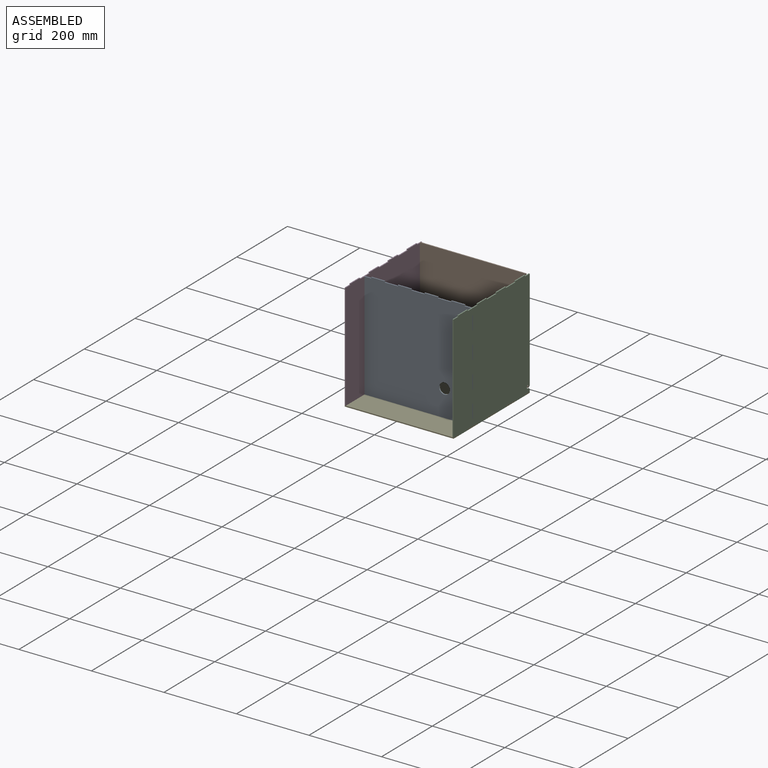
[diagram: assembled view]
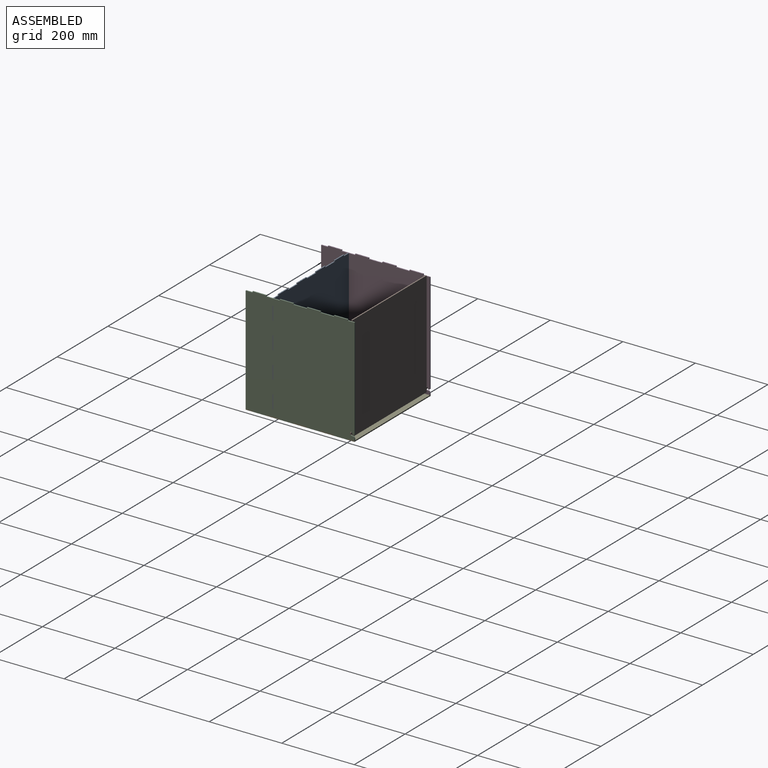
[diagram: assembled view, second angle]
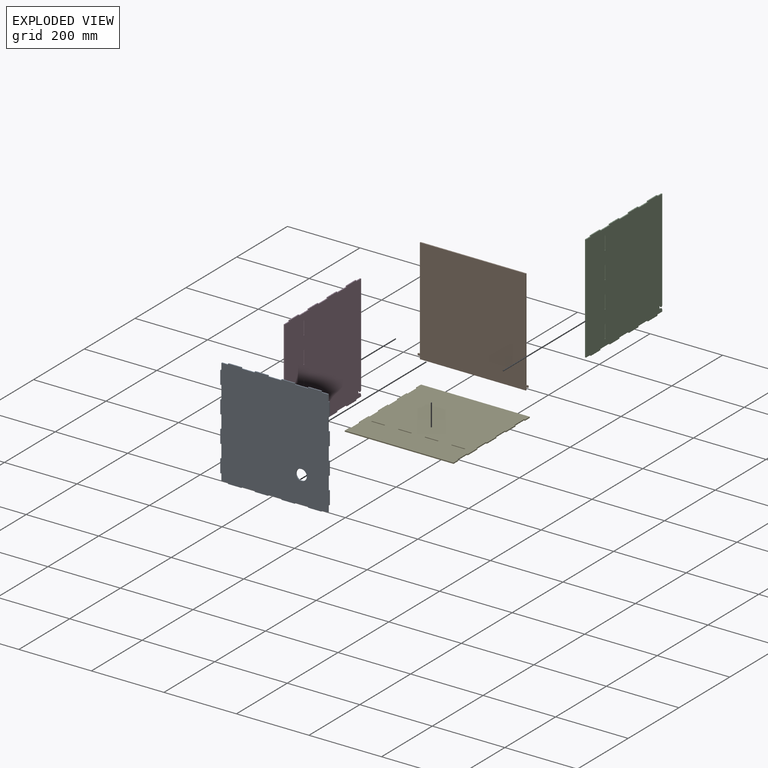
[diagram: exploded view]
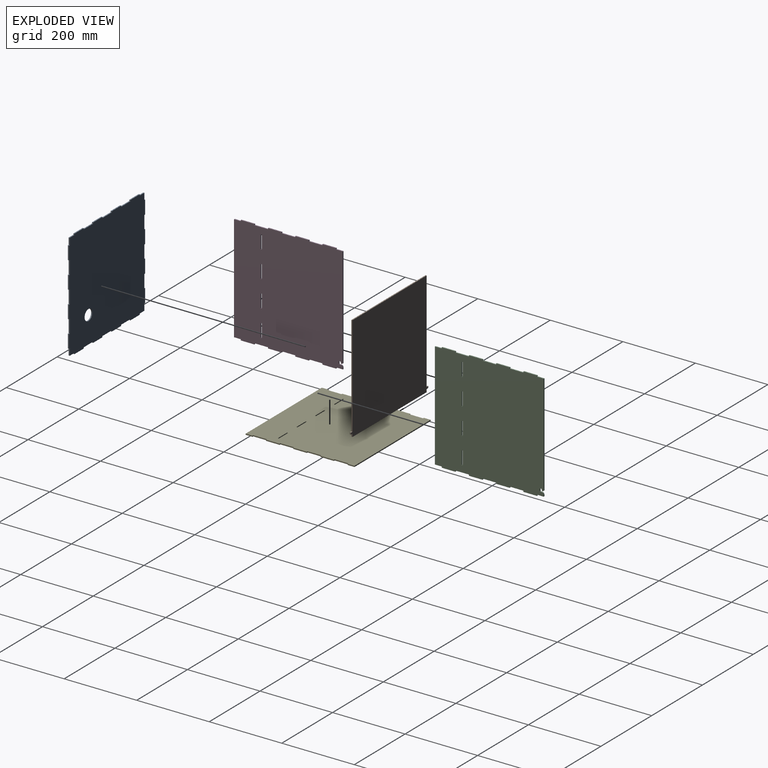
[diagram: exploded view, second angle]
ASSEMBLY  parts=5 mates=4
PART A: 71 faces, bbox 300x300x3 mm
  f0: plane 3x3mm, normal (0,1,0), area 9mm2, adj f1,f68,f69,f70
  f1: plane 36.75x3mm, normal (-1,0,0), area 110.2mm2, adj f0,f2,f69,f70
  f2: plane 3x3mm, normal (0,-1,0), area 9mm2, adj f1,f3,f69,f70
  f3: plane 36.75x3mm, normal (-1,0,0), area 110.2mm2, adj f2,f4,f69,f70
  f4: plane 3x3mm, normal (0,1,0), area 9mm2, adj f3,f5,f69,f70
  f5: plane 36.75x3mm, normal (-1,0,0), area 110.3mm2, adj f4,f6,f69,f70
  f6: plane 3x3mm, normal (0,-1,0), area 9mm2, adj f5,f7,f69,f70
  f7: plane 36.75x3mm, normal (-1,0,0), area 110.2mm2, adj f6,f8,f69,f70
  f8: plane 3x3mm, normal (0,1,0), area 9mm2, adj f7,f9,f69,f70
  f9: plane 36.75x3mm, normal (-1,0,0), area 110.3mm2, adj f8,f10,f69,f70
  f10: plane 3x3mm, normal (0,-1,0), area 9mm2, adj f9,f11,f69,f70
  f11: plane 36.75x3mm, normal (-1,0,0), area 110.2mm2, adj f10,f12,f69,f70
  f12: plane 3x3mm, normal (0,1,0), area 9mm2, adj f11,f13,f69,f70
  f13: plane 36.75x3mm, normal (-1,0,0), area 110.2mm2, adj f12,f14,f69,f70
  f14: plane 3x3mm, normal (0,-1,0), area 9mm2, adj f13,f15,f69,f70
  f15: plane 18.38x3mm, normal (-1,0,0), area 55.1mm2, adj f14,f16,f69,f70
  f16: plane 18.38x3mm, normal (0,-1,0), area 55.1mm2, adj f15,f17,f69,f70
  f17: plane 3x3mm, normal (-1,0,0), area 9mm2, adj f16,f18,f69,f70
  f18: plane 36.75x3mm, normal (0,-1,0), area 110.2mm2, adj f17,f19,f69,f70
  f19: plane 3x3mm, normal (1,0,0), area 9mm2, adj f18,f20,f69,f70
  f20: plane 36.75x3mm, normal (0,-1,0), area 110.2mm2, adj f19,f21,f69,f70
  f21: plane 3x3mm, normal (-1,0,0), area 9mm2, adj f20,f22,f69,f70
  f22: plane 36.75x3mm, normal (0,-1,0), area 110.3mm2, adj f21,f23,f69,f70
  f23: plane 3x3mm, normal (1,0,0), area 9mm2, adj f22,f24,f69,f70
  f24: plane 36.75x3mm, normal (0,-1,0), area 110.2mm2, adj f23,f25,f69,f70
  f25: plane 3x3mm, normal (-1,0,0), area 9mm2, adj f24,f26,f69,f70
  f26: plane 36.75x3mm, normal (0,-1,0), area 110.3mm2, adj f25,f27,f69,f70
  f27: plane 3x3mm, normal (1,0,0), area 9mm2, adj f26,f28,f69,f70
  f28: plane 36.75x3mm, normal (0,-1,0), area 110.2mm2, adj f27,f29,f69,f70
  f29: plane 3x3mm, normal (-1,0,0), area 9mm2, adj f28,f30,f69,f70
  f30: plane 36.75x3mm, normal (0,-1,0), area 110.2mm2, adj f29,f31,f69,f70
  f31: plane 3x3mm, normal (1,0,0), area 9mm2, adj f30,f32,f69,f70
  f32: plane 18.38x3mm, normal (0,-1,0), area 55.1mm2, adj f31,f33,f69,f70
  f33: plane 18.38x3mm, normal (1,0,0), area 55.1mm2, adj f32,f34,f69,f70
  f34: plane 3x3mm, normal (0,-1,0), area 9mm2, adj f33,f35,f69,f70
  f35: plane 36.75x3mm, normal (1,0,0), area 110.2mm2, adj f34,f36,f69,f70
  f36: plane 3x3mm, normal (0,1,0), area 9mm2, adj f35,f37,f69,f70
  f37: plane 36.75x3mm, normal (1,0,0), area 110.2mm2, adj f36,f38,f69,f70
  f38: plane 3x3mm, normal (0,-1,0), area 9mm2, adj f37,f39,f69,f70
  f39: plane 36.75x3mm, normal (1,0,0), area 110.3mm2, adj f38,f40,f69,f70
  f40: plane 3x3mm, normal (0,1,0), area 9mm2, adj f39,f41,f69,f70
  f41: plane 36.75x3mm, normal (1,0,0), area 110.2mm2, adj f40,f42,f69,f70
  f42: plane 3x3mm, normal (0,-1,0), area 9mm2, adj f41,f43,f69,f70
  f43: plane 36.75x3mm, normal (1,0,0), area 110.3mm2, adj f42,f44,f69,f70
  f44: plane 3x3mm, normal (0,1,0), area 9mm2, adj f43,f45,f69,f70
  f45: plane 36.75x3mm, normal (1,0,0), area 110.2mm2, adj f44,f46,f69,f70
  f46: plane 3x3mm, normal (0,-1,0), area 9mm2, adj f45,f47,f69,f70
  f47: plane 36.75x3mm, normal (1,0,0), area 110.2mm2, adj f46,f48,f69,f70
  f48: plane 3x3mm, normal (0,1,0), area 9mm2, adj f47,f49,f69,f70
  f49: plane 18.38x3mm, normal (1,0,0), area 55.1mm2, adj f48,f50,f69,f70
  f50: plane 18.38x3mm, normal (0,1,0), area 55.1mm2, adj f49,f51,f69,f70
  f51: plane 3x3mm, normal (1,0,0), area 9mm2, adj f50,f52,f69,f70
  f52: plane 36.75x3mm, normal (0,1,0), area 110.2mm2, adj f51,f53,f69,f70
  f53: plane 3x3mm, normal (-1,0,0), area 9mm2, adj f52,f54,f69,f70
  f54: plane 36.75x3mm, normal (0,1,0), area 110.2mm2, adj f53,f55,f69,f70
  f55: plane 3x3mm, normal (1,0,0), area 9mm2, adj f54,f56,f69,f70
  f56: plane 36.75x3mm, normal (0,1,0), area 110.3mm2, adj f55,f57,f69,f70
  f57: plane 3x3mm, normal (-1,0,0), area 9mm2, adj f56,f58,f69,f70
  f58: plane 36.75x3mm, normal (0,1,0), area 110.2mm2, adj f57,f59,f69,f70
  f59: plane 3x3mm, normal (1,0,0), area 9mm2, adj f58,f60,f69,f70
  f60: plane 36.75x3mm, normal (0,1,0), area 110.3mm2, adj f59,f61,f69,f70
  f61: plane 3x3mm, normal (-1,0,0), area 9mm2, adj f60,f62,f69,f70
  f62: plane 36.75x3mm, normal (0,1,0), area 110.2mm2, adj f61,f63,f69,f70
  f63: plane 3x3mm, normal (1,0,0), area 9mm2, adj f62,f64,f69,f70
  f64: plane 36.75x3mm, normal (0,1,0), area 110.2mm2, adj f63,f65,f69,f70
  f65: plane 3x3mm, normal (-1,0,0), area 9mm2, adj f64,f66,f69,f70
  f66: plane 18.38x3mm, normal (0,1,0), area 55.1mm2, adj f65,f68,f69,f70
  f67: cylinder r=15mm len=30mm, axis (0,0,-1), area 282.7mm2, adj f69,f70
  f68: plane 18.38x3mm, normal (-1,0,0), area 55.1mm2, adj f0,f66,f69,f70
  f69: plane 300x300mm, normal (0,0,1), area 87493.1mm2, adj f0,f1,f2,f3,f4,f5,f6,f7
  f70: plane 300x300mm, normal (0,0,-1), area 87493.1mm2, adj f0,f1,f2,f3,f4,f5,f6,f7
PART B: 14 faces, bbox 304x291x3 mm
  f0: plane 292x3mm, normal (0,1,0), area 876mm2, adj f1,f11,f12,f13
  f1: plane 8x3mm, normal (-1,0,0), area 24mm2, adj f0,f2,f12,f13
  f2: plane 6x3mm, normal (0,1,0), area 18mm2, adj f1,f3,f12,f13
  f3: plane 5x3mm, normal (-1,0,0), area 15mm2, adj f2,f4,f12,f13
  f4: plane 6x3mm, normal (0,-1,0), area 18mm2, adj f3,f5,f12,f13
  f5: plane 278x3mm, normal (-1,0,0), area 834mm2, adj f4,f6,f12,f13
  f6: plane 292x3mm, normal (0,-1,0), area 876mm2, adj f5,f7,f12,f13
  f7: plane 278x3mm, normal (1,0,0), area 834mm2, adj f6,f8,f12,f13
  f8: plane 6x3mm, normal (0,-1,0), area 18mm2, adj f7,f9,f12,f13
  f9: plane 5x3mm, normal (1,0,0), area 15mm2, adj f8,f10,f12,f13
  f10: plane 6x3mm, normal (0,1,0), area 18mm2, adj f9,f11,f12,f13
  f11: plane 8x3mm, normal (1,0,0), area 24mm2, adj f0,f10,f12,f13
  f12: plane 304x291mm, normal (0,0,1), area 85032mm2, adj f0,f1,f2,f3,f4,f5,f6,f7
  f13: plane 304x291mm, normal (0,0,-1), area 85032mm2, adj f0,f1,f2,f3,f4,f5,f6,f7
PART C: 58 faces, bbox 300x300x3 mm
  f0: plane 279.27x3mm, normal (0,1,0), area 837.8mm2, adj f1,f55,f56,f57
  f1: extruded ~10.77x5.73mm, area 45.7mm2, adj f0,f2,f56,f57
  f2: plane 6x3mm, normal (0,1,0), area 18mm2, adj f1,f3,f56,f57
  f3: extruded ~10.77x6.66mm, area 42.4mm2, adj f2,f4,f56,f57
  f4: plane 4.25x3mm, normal (0,1,0), area 12.8mm2, adj f3,f5,f56,f57
  f5: plane 18.75x3mm, normal (-1,0,0), area 56.2mm2, adj f4,f6,f56,f57
  f6: plane 3x3mm, normal (0,1,0), area 9mm2, adj f5,f7,f56,f57
  f7: plane 37.5x3mm, normal (-1,0,0), area 112.5mm2, adj f6,f8,f56,f57
  f8: plane 3x3mm, normal (0,-1,0), area 9mm2, adj f7,f9,f56,f57
  f9: plane 37.5x3mm, normal (-1,0,0), area 112.5mm2, adj f8,f10,f56,f57
  f10: plane 3x3mm, normal (0,1,0), area 9mm2, adj f9,f11,f56,f57
  f11: plane 37.5x3mm, normal (-1,0,0), area 112.5mm2, adj f10,f12,f56,f57
  f12: plane 3x3mm, normal (0,-1,0), area 9mm2, adj f11,f13,f56,f57
  f13: plane 37.5x3mm, normal (-1,0,0), area 112.5mm2, adj f12,f14,f56,f57
  f14: plane 3x3mm, normal (0,1,0), area 9mm2, adj f13,f15,f56,f57
  f15: plane 37.5x3mm, normal (-1,0,0), area 112.5mm2, adj f14,f16,f56,f57
  f16: plane 3x3mm, normal (0,-1,0), area 9mm2, adj f15,f17,f56,f57
  f17: plane 37.5x3mm, normal (-1,0,0), area 112.5mm2, adj f16,f18,f56,f57
  f18: plane 3x3mm, normal (0,1,0), area 9mm2, adj f17,f19,f56,f57
  f19: plane 37.5x3mm, normal (-1,0,0), area 112.5mm2, adj f18,f20,f56,f57
  f20: plane 3x3mm, normal (0,-1,0), area 9mm2, adj f19,f21,f56,f57
  f21: plane 18.75x3mm, normal (-1,0,0), area 56.2mm2, adj f20,f22,f56,f57
  f22: plane 294x3mm, normal (0,-1,0), area 882mm2, adj f21,f23,f56,f57
  f23: plane 18.75x3mm, normal (1,0,0), area 56.2mm2, adj f22,f24,f56,f57
  f24: plane 3x3mm, normal (0,-1,0), area 9mm2, adj f23,f25,f56,f57
  f25: plane 37.5x3mm, normal (1,0,0), area 112.5mm2, adj f24,f26,f56,f57
  f26: plane 3x3mm, normal (0,1,0), area 9mm2, adj f25,f27,f56,f57
  f27: plane 37.5x3mm, normal (1,0,0), area 112.5mm2, adj f26,f28,f56,f57
  f28: plane 3x3mm, normal (0,-1,0), area 9mm2, adj f27,f29,f56,f57
  f29: plane 37.5x3mm, normal (1,0,0), area 112.5mm2, adj f28,f30,f56,f57
  f30: plane 3x3mm, normal (0,1,0), area 9mm2, adj f29,f31,f56,f57
  f31: plane 37.5x3mm, normal (1,0,0), area 112.5mm2, adj f30,f32,f56,f57
  f32: plane 3x3mm, normal (0,-1,0), area 9mm2, adj f31,f33,f56,f57
  f33: plane 37.5x3mm, normal (1,0,0), area 112.5mm2, adj f32,f34,f56,f57
  f34: plane 3x3mm, normal (0,1,0), area 9mm2, adj f33,f35,f56,f57
  f35: plane 37.5x3mm, normal (1,0,0), area 112.5mm2, adj f34,f36,f56,f57
  f36: plane 3x3mm, normal (0,-1,0), area 9mm2, adj f35,f37,f56,f57
  f37: plane 37.5x3mm, normal (1,0,0), area 112.5mm2, adj f36,f38,f56,f57
  f38: plane 3x3mm, normal (0,1,0), area 9mm2, adj f37,f55,f56,f57
  f39: plane 36.75x3mm, normal (0,-1,0), area 110.3mm2, adj f40,f51,f56,f57
  f40: plane 3x3mm, normal (-1,0,0), area 9mm2, adj f39,f41,f56,f57
  f41: plane 36.75x3mm, normal (0,1,0), area 110.3mm2, adj f40,f51,f56,f57
  f42: plane 36.75x3mm, normal (0,-1,0), area 110.2mm2, adj f43,f52,f56,f57
  f43: plane 3x3mm, normal (-1,0,0), area 9mm2, adj f42,f44,f56,f57
  f44: plane 36.75x3mm, normal (0,1,0), area 110.2mm2, adj f43,f52,f56,f57
  f45: plane 3x3mm, normal (1,0,0), area 9mm2, adj f46,f53,f56,f57
  f46: plane 36.75x3mm, normal (0,-1,0), area 110.3mm2, adj f45,f47,f56,f57
  f47: plane 3x3mm, normal (-1,0,0), area 9mm2, adj f46,f53,f56,f57
  f48: plane 3x3mm, normal (1,0,0), area 9mm2, adj f49,f54,f56,f57
  f49: plane 36.75x3mm, normal (0,-1,0), area 110.2mm2, adj f48,f50,f56,f57
  f50: plane 3x3mm, normal (-1,0,0), area 9mm2, adj f49,f54,f56,f57
  f51: plane 3x3mm, normal (1,0,0), area 9mm2, adj f39,f41,f56,f57
  f52: plane 3x3mm, normal (1,0,0), area 9mm2, adj f42,f44,f56,f57
  f53: plane 36.75x3mm, normal (0,1,0), area 110.3mm2, adj f45,f47,f56,f57
  f54: plane 36.75x3mm, normal (0,1,0), area 110.2mm2, adj f48,f50,f56,f57
  f55: plane 18.75x3mm, normal (1,0,0), area 56.2mm2, adj f0,f38,f56,f57
  f56: plane 300x300mm, normal (0,0,1), area 88592.5mm2, adj f0,f1,f2,f3,f4,f5,f6,f7
  f57: plane 300x300mm, normal (0,0,-1), area 88592.5mm2, adj f0,f1,f2,f3,f4,f5,f6,f7
PART D: same geometry as C
PART E: 54 faces, bbox 300x300x3 mm
  f0: plane 300x3mm, normal (0,1,0), area 900mm2, adj f1,f51,f52,f53
  f1: plane 18.75x3mm, normal (-1,0,0), area 56.2mm2, adj f0,f2,f52,f53
  f2: plane 3x3mm, normal (0,-1,0), area 9mm2, adj f1,f3,f52,f53
  f3: plane 37.5x3mm, normal (-1,0,0), area 112.5mm2, adj f2,f4,f52,f53
  f4: plane 3x3mm, normal (0,1,0), area 9mm2, adj f3,f5,f52,f53
  f5: plane 37.5x3mm, normal (-1,0,0), area 112.5mm2, adj f4,f6,f52,f53
  f6: plane 3x3mm, normal (0,-1,0), area 9mm2, adj f5,f7,f52,f53
  f7: plane 37.5x3mm, normal (-1,0,0), area 112.5mm2, adj f6,f8,f52,f53
  f8: plane 3x3mm, normal (0,1,0), area 9mm2, adj f7,f9,f52,f53
  f9: plane 37.5x3mm, normal (-1,0,0), area 112.5mm2, adj f8,f10,f52,f53
  f10: plane 3x3mm, normal (0,-1,0), area 9mm2, adj f9,f11,f52,f53
  f11: plane 37.5x3mm, normal (-1,0,0), area 112.5mm2, adj f10,f12,f52,f53
  f12: plane 3x3mm, normal (0,1,0), area 9mm2, adj f11,f13,f52,f53
  f13: plane 37.5x3mm, normal (-1,0,0), area 112.5mm2, adj f12,f14,f52,f53
  f14: plane 3x3mm, normal (0,-1,0), area 9mm2, adj f13,f15,f52,f53
  f15: plane 37.5x3mm, normal (-1,0,0), area 112.5mm2, adj f14,f16,f52,f53
  f16: plane 3x3mm, normal (0,1,0), area 9mm2, adj f15,f17,f52,f53
  f17: plane 18.75x3mm, normal (-1,0,0), area 56.2mm2, adj f16,f18,f52,f53
  f18: plane 300x3mm, normal (0,-1,0), area 900mm2, adj f17,f19,f52,f53
  f19: plane 18.75x3mm, normal (1,0,0), area 56.2mm2, adj f18,f20,f52,f53
  f20: plane 3x3mm, normal (0,1,0), area 9mm2, adj f19,f21,f52,f53
  f21: plane 37.5x3mm, normal (1,0,0), area 112.5mm2, adj f20,f22,f52,f53
  f22: plane 3x3mm, normal (0,-1,0), area 9mm2, adj f21,f23,f52,f53
  f23: plane 37.5x3mm, normal (1,0,0), area 112.5mm2, adj f22,f24,f52,f53
  f24: plane 3x3mm, normal (0,1,0), area 9mm2, adj f23,f25,f52,f53
  f25: plane 37.5x3mm, normal (1,0,0), area 112.5mm2, adj f24,f26,f52,f53
  f26: plane 3x3mm, normal (0,-1,0), area 9mm2, adj f25,f27,f52,f53
  f27: plane 37.5x3mm, normal (1,0,0), area 112.5mm2, adj f26,f28,f52,f53
  f28: plane 3x3mm, normal (0,1,0), area 9mm2, adj f27,f29,f52,f53
  f29: plane 37.5x3mm, normal (1,0,0), area 112.5mm2, adj f28,f30,f52,f53
  f30: plane 3x3mm, normal (0,-1,0), area 9mm2, adj f29,f31,f52,f53
  f31: plane 37.5x3mm, normal (1,0,0), area 112.5mm2, adj f30,f32,f52,f53
  f32: plane 3x3mm, normal (0,1,0), area 9mm2, adj f31,f33,f52,f53
  f33: plane 37.5x3mm, normal (1,0,0), area 112.5mm2, adj f32,f34,f52,f53
  f34: plane 3x3mm, normal (0,-1,0), area 9mm2, adj f33,f51,f52,f53
  f35: plane 3x3mm, normal (1,0,0), area 9mm2, adj f36,f47,f52,f53
  f36: plane 36.75x3mm, normal (0,-1,0), area 110.2mm2, adj f35,f37,f52,f53
  f37: plane 3x3mm, normal (-1,0,0), area 9mm2, adj f36,f47,f52,f53
  f38: plane 3x3mm, normal (1,0,0), area 9mm2, adj f39,f48,f52,f53
  f39: plane 36.75x3mm, normal (0,-1,0), area 110.3mm2, adj f38,f40,f52,f53
  f40: plane 3x3mm, normal (-1,0,0), area 9mm2, adj f39,f48,f52,f53
  f41: plane 36.75x3mm, normal (0,-1,0), area 110.3mm2, adj f42,f49,f52,f53
  f42: plane 3x3mm, normal (-1,0,0), area 9mm2, adj f41,f43,f52,f53
  f43: plane 36.75x3mm, normal (0,1,0), area 110.3mm2, adj f42,f49,f52,f53
  f44: plane 3x3mm, normal (-1,0,0), area 9mm2, adj f45,f50,f52,f53
  f45: plane 36.75x3mm, normal (0,1,0), area 110.2mm2, adj f44,f46,f52,f53
  f46: plane 3x3mm, normal (1,0,0), area 9mm2, adj f45,f50,f52,f53
  f47: plane 36.75x3mm, normal (0,1,0), area 110.2mm2, adj f35,f37,f52,f53
  f48: plane 36.75x3mm, normal (0,1,0), area 110.3mm2, adj f38,f40,f52,f53
  f49: plane 3x3mm, normal (1,0,0), area 9mm2, adj f41,f43,f52,f53
  f50: plane 36.75x3mm, normal (0,-1,0), area 110.2mm2, adj f44,f46,f52,f53
  f51: plane 18.75x3mm, normal (1,0,0), area 56.2mm2, adj f0,f34,f52,f53
  f52: plane 300x300mm, normal (0,0,1), area 88659mm2, adj f0,f1,f2,f3,f4,f5,f6,f7
  f53: plane 300x300mm, normal (0,0,-1), area 88659mm2, adj f0,f1,f2,f3,f4,f5,f6,f7
PLACE A rot(axis=(-1,0,0),90deg) t=(-190.11,-214.18,-337.75)mm
PLACE B rot(axis=(-1,0,0),90deg) t=(-189.61,1.54,-334.83)mm
PLACE C rot(axis=(0,-1,0),90deg) t=(-40.11,-137.68,-337.75)mm
PLACE D rot(axis=(0,-1,0),90deg) t=(-337.11,-137.68,-337.75)mm
PLACE E t=(-190.11,-137.68,-487.75)mm
MATE fastened C.f6 <-> E.f34  axis (0,1,0) through (-41.61,-6.43,-486.25)mm
MATE fastened E.f44 <-> A.f51  axis (-1,0,0) through (-61.48,-212.68,-486.25)mm
MATE fastened D.f52 <-> A.f12  axis (0,0,1) through (-338.61,-212.68,-245.87)mm
MATE fastened B.f13 <-> D.f2  axis (0,-1,0) through (-338.61,1.54,-470.83)mm
